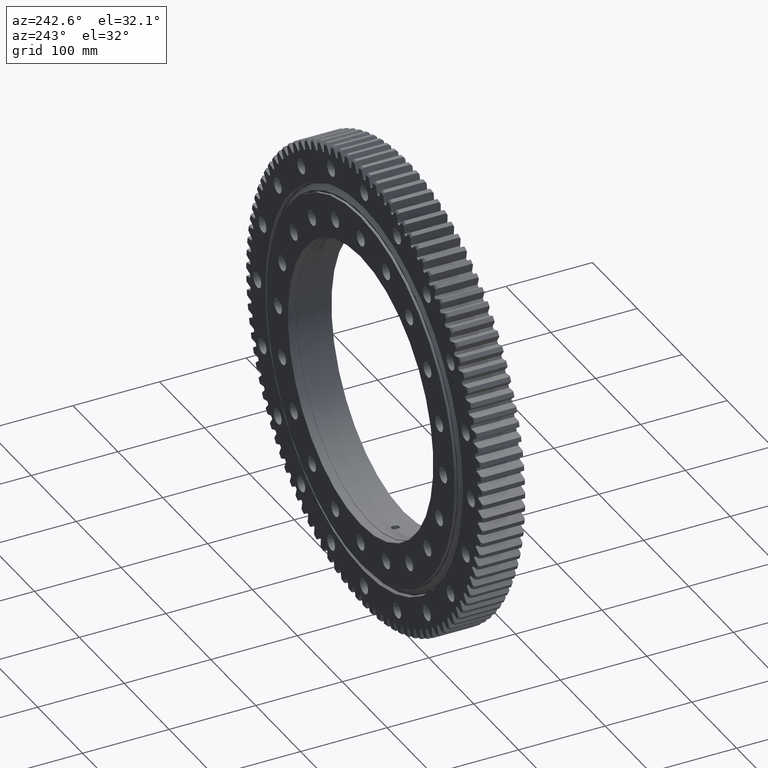
[diagram: clean part render]
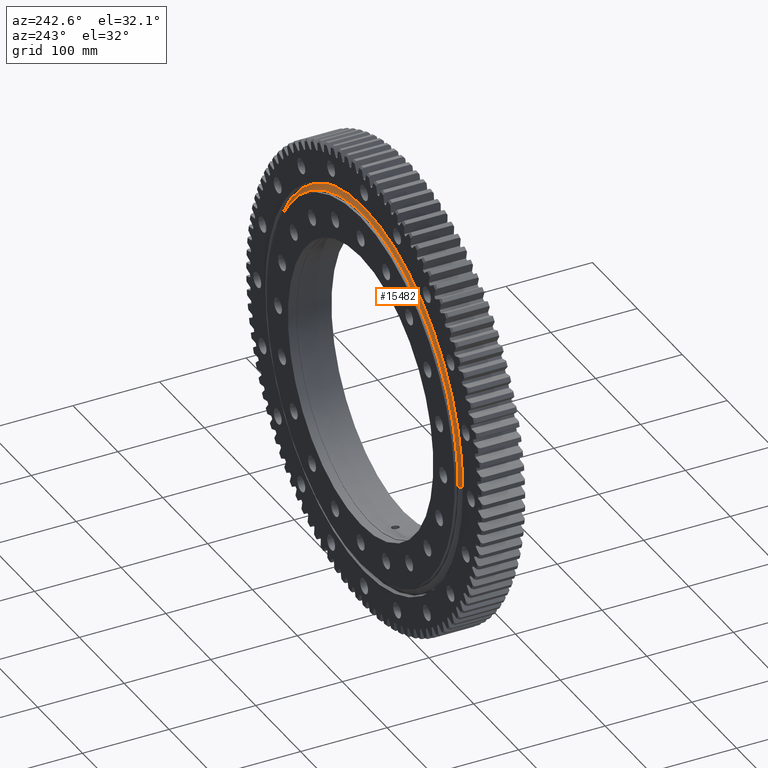
[diagram: same view with one face highlighted and labeled with its STEP entity id]
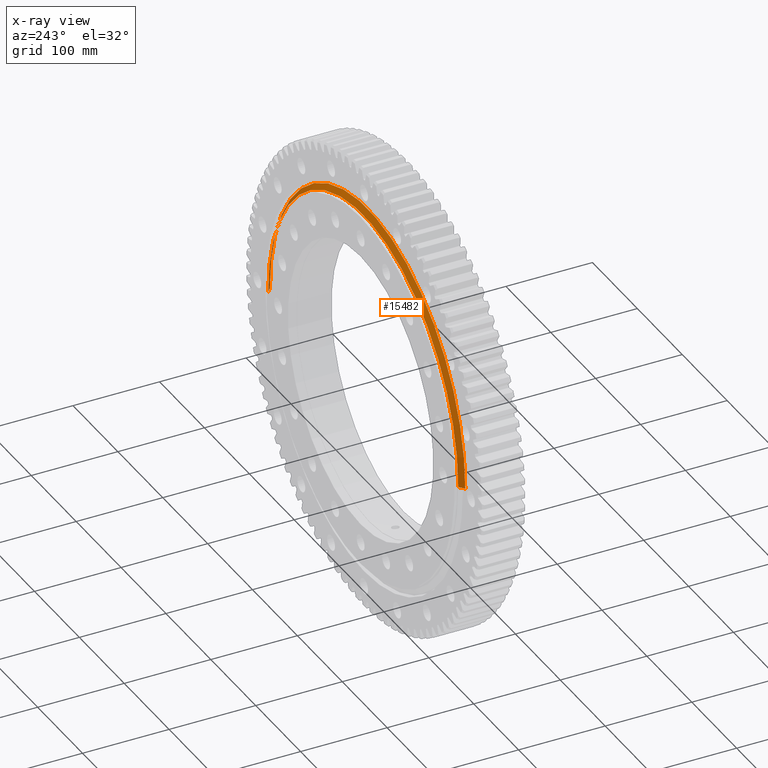
[diagram: x-ray of the same camera — body ghosted, the highlighted face saturated]
A machine part, auxiliary view. The second image highlights one B-rep face of the part: STEP entity #15482.
The next image is the same camera in x-ray: the body ghosted, the highlighted face saturated — about 0% of this face is hidden behind the body in this view.
In plain terms, the highlighted conical surface has half-angle 49.914 deg.
Its self-contained STEP definition (entity closure, byte-faithful):
#77 = LINE ( 'NONE', #8337, #19961 ) ;
#152 = CIRCLE ( 'NONE', #17625, 211.7299999999999900 ) ;
#1364 = CONICAL_SURFACE ( 'NONE', #17630, 217.7300000000000200, 0.8711601305813060400 ) ;
#2251 = DIRECTION ( 'NONE',  ( -0.7650765054985545500, -0.6439393921279549200, 9.369484935616470300E-017 ) ) ;
#3279 = CARTESIAN_POINT ( 'NONE',  ( 211.7299999999999900, 24.04999999999996900, 0.0000000000000000000 ) ) ;
#4381 = EDGE_CURVE ( 'NONE', #6677, #20113, #16652, .T. ) ;
#4424 = AXIS2_PLACEMENT_3D ( 'NONE', #25702, #7625, #21945 ) ;
#6292 = DIRECTION ( 'NONE',  ( 1.836909530733565900E-016, 1.000000000000000000, -0.0000000000000000000 ) ) ;
#6557 = EDGE_CURVE ( 'NONE', #10413, #20113, #24572, .T. ) ;
#6584 = VERTEX_POINT ( 'NONE', #14156 ) ;
#6677 = VERTEX_POINT ( 'NONE', #8243 ) ;
#7345 = ORIENTED_EDGE ( 'NONE', *, *, #6557, .F. ) ;
#7625 = DIRECTION ( 'NONE',  ( 1.836909530733565900E-016, 1.000000000000000000, -0.0000000000000000000 ) ) ;
#8243 = CARTESIAN_POINT ( 'NONE',  ( -217.7300000000000200, 19.00000000000000400, 2.666423475783532300E-014 ) ) ;
#8337 = CARTESIAN_POINT ( 'NONE',  ( -217.7300000000000200, 19.00000000000000400, 2.666423475783532300E-014 ) ) ;
#9898 = EDGE_LOOP ( 'NONE', ( #15128, #16472, #15901, #7345 ) ) ;
#10413 = VERTEX_POINT ( 'NONE', #3279 ) ;
#12087 = CARTESIAN_POINT ( 'NONE',  ( 217.7300000000000200, 18.99999999999991800, 0.0000000000000000000 ) ) ;
#14156 = CARTESIAN_POINT ( 'NONE',  ( -211.7299999999999900, 24.05000000000004300, 2.629684071809111400E-014 ) ) ;
#15128 = ORIENTED_EDGE ( 'NONE', *, *, #23014, .F. ) ;
#15482 = ADVANCED_FACE ( 'NONE', ( #24443 ), #1364, .T. ) ;
#15901 = ORIENTED_EDGE ( 'NONE', *, *, #4381, .T. ) ;
#16472 = ORIENTED_EDGE ( 'NONE', *, *, #25433, .T. ) ;
#16652 = CIRCLE ( 'NONE', #4424, 217.7300000000000200 ) ;
#17625 = AXIS2_PLACEMENT_3D ( 'NONE', #18559, #6292, #20624 ) ;
#17630 = AXIS2_PLACEMENT_3D ( 'NONE', #20272, #24375, #26428 ) ;
#18559 = CARTESIAN_POINT ( 'NONE',  ( -1.377793072538746000E-015, 24.05000000000000400, 0.0000000000000000000 ) ) ;
#19028 = CARTESIAN_POINT ( 'NONE',  ( 217.7300000000000200, 18.99999999999991800, 0.0000000000000000000 ) ) ;
#19961 = VECTOR ( 'NONE', #2251, 1000.000000000000100 ) ;
#20113 = VERTEX_POINT ( 'NONE', #19028 ) ;
#20272 = CARTESIAN_POINT ( 'NONE',  ( -2.305432385559204200E-015, 18.99999999999996100, 0.0000000000000000000 ) ) ;
#20624 = DIRECTION ( 'NONE',  ( -1.000000000000000000, 1.802480350988983900E-016, 0.0000000000000000000 ) ) ;
#21945 = DIRECTION ( 'NONE',  ( -1.000000000000000000, 1.912155579086178600E-016, 0.0000000000000000000 ) ) ;
#22637 = VECTOR ( 'NONE', #26434, 1000.000000000000000 ) ;
#23014 = EDGE_CURVE ( 'NONE', #6584, #10413, #152, .T. ) ;
#24375 = DIRECTION ( 'NONE',  ( -1.836909530733565900E-016, -1.000000000000000000, 0.0000000000000000000 ) ) ;
#24443 = FACE_OUTER_BOUND ( 'NONE', #9898, .T. ) ;
#24572 = LINE ( 'NONE', #12087, #22637 ) ;
#25433 = EDGE_CURVE ( 'NONE', #6584, #6677, #77, .T. ) ;
#25702 = CARTESIAN_POINT ( 'NONE',  ( -2.305432385559204200E-015, 18.99999999999996100, 0.0000000000000000000 ) ) ;
#26428 = DIRECTION ( 'NONE',  ( 1.000000000000000000, -1.912155579086178600E-016, 0.0000000000000000000 ) ) ;
#26434 = DIRECTION ( 'NONE',  ( 0.7650765054985544400, -0.6439393921279552600, 0.0000000000000000000 ) ) ;